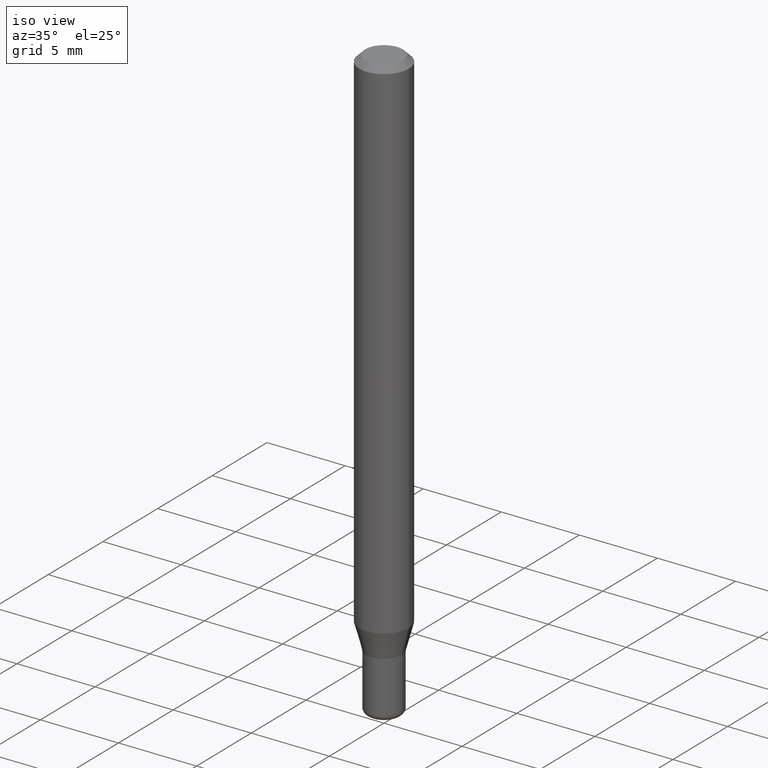
[diagram: clean part render]
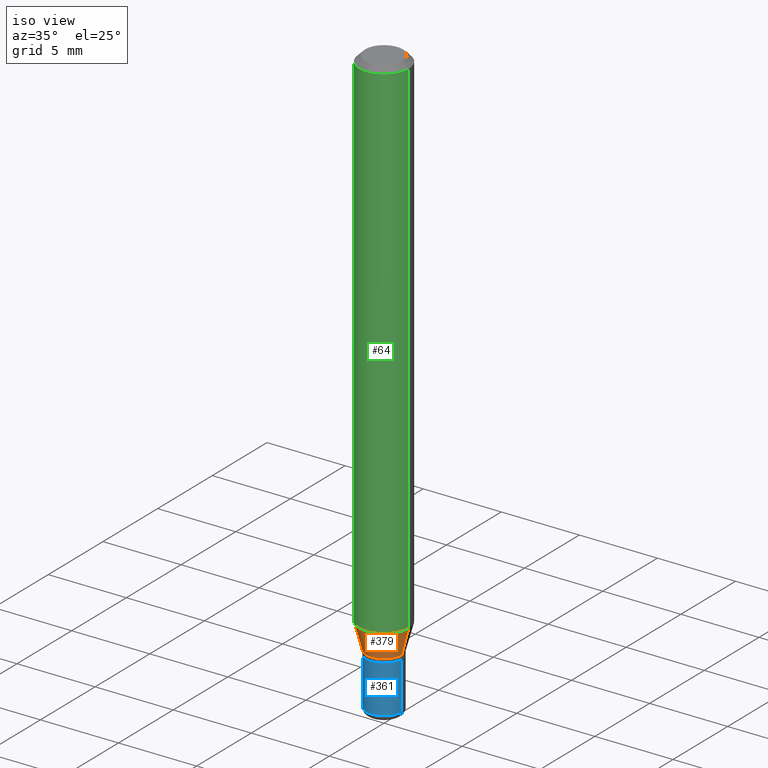
[diagram: same view with three faces highlighted in distinct colors, each labeled with its STEP entity id]
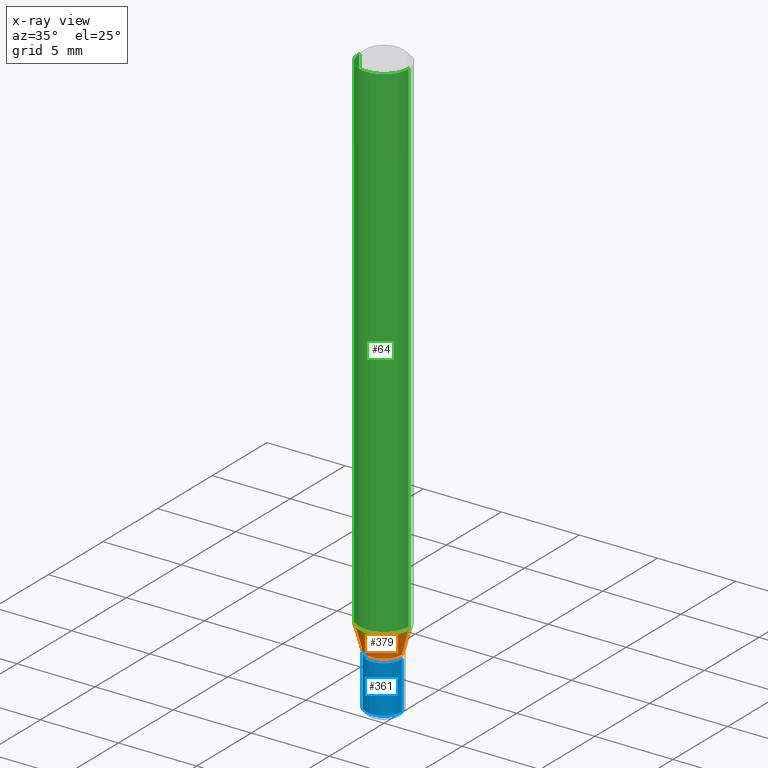
[diagram: x-ray of the same camera — body ghosted, the three highlighted faces saturated]
A machine part, iso view with three faces highlighted in distinct colors.
The next image is the same camera in x-ray (body ghosted, the three faces saturated) — at least one of them is partly hidden behind the body in this view.
Their STEP definitions:

[orange] entity #379 — the highlighted conical surface has half-angle 15 deg.
#2 = CIRCLE ( 'NONE', #397, 0.06250000000000000000 ) ;
#3 = AXIS2_PLACEMENT_3D ( 'NONE', #500, #295, #470 ) ;
#6 = CARTESIAN_POINT ( 'NONE',  ( 3.313610232380860851E-29, -4.730957214132463209E-15, -1.355000000000000204 ) ) ;
#12 = ORIENTED_EDGE ( 'NONE', *, *, #188, .F. ) ;
#26 = ORIENTED_EDGE ( 'NONE', *, *, #451, .T. ) ;
#28 = VERTEX_POINT ( 'NONE', #413 ) ;
#29 = VECTOR ( 'NONE', #478, 39.37007874015748143 ) ;
#36 = LINE ( 'NONE', #388, #399 ) ;
#39 = CARTESIAN_POINT ( 'NONE',  ( 0.06250000000000000000, -4.939360630858633822E-15, -1.289689110867545008 ) ) ;
#54 = VERTEX_POINT ( 'NONE', #39 ) ;
#94 = EDGE_CURVE ( 'NONE', #201, #54, #2, .T. ) ;
#126 = ORIENTED_EDGE ( 'NONE', *, *, #255, .T. ) ;
#187 = VERTEX_POINT ( 'NONE', #439 ) ;
#188 = EDGE_CURVE ( 'NONE', #187, #201, #353, .T. ) ;
#189 = AXIS2_PLACEMENT_3D ( 'NONE', #6, #202, #384 ) ;
#201 = VERTEX_POINT ( 'NONE', #271 ) ;
#202 = DIRECTION ( 'NONE',  ( -2.445468806185136597E-29, 3.491481338843145583E-15, 1.000000000000000000 ) ) ;
#215 = EDGE_LOOP ( 'NONE', ( #12, #126, #26, #326 ) ) ;
#255 = EDGE_CURVE ( 'NONE', #187, #28, #417, .T. ) ;
#268 = CARTESIAN_POINT ( 'NONE',  ( -0.04500000000000000527, -4.411212983040417053E-15, -1.355000000000000204 ) ) ;
#271 = CARTESIAN_POINT ( 'NONE',  ( -0.06250000000000000000, -4.058836253653178747E-15, -1.289689110867545008 ) ) ;
#295 = DIRECTION ( 'NONE',  ( -2.445468806185136597E-29, 3.491481338843145583E-15, 1.000000000000000000 ) ) ;
#304 = CONICAL_SURFACE ( 'NONE', #3, 0.04500000000000000527, 0.2617993877991497964 ) ;
#321 = FACE_OUTER_BOUND ( 'NONE', #215, .T. ) ;
#326 = ORIENTED_EDGE ( 'NONE', *, *, #94, .F. ) ;
#347 = DIRECTION ( 'NONE',  ( 0.2588190451025211281, 1.565188264969623940E-15, 0.9659258262890682012 ) ) ;
#353 = LINE ( 'NONE', #268, #29 ) ;
#379 = ADVANCED_FACE ( 'NONE', ( #321 ), #304, .T. ) ;
#382 = CARTESIAN_POINT ( 'NONE',  ( 3.153894490303225812E-29, -4.502925463503242152E-15, -1.289689110867545008 ) ) ;
#384 = DIRECTION ( 'NONE',  ( 1.000000000000000000, -6.982962677686267499E-15, 0.000000000000000000 ) ) ;
#388 = CARTESIAN_POINT ( 'NONE',  ( 0.04500000000000000527, -5.045190534628344896E-15, -1.355000000000000204 ) ) ;
#397 = AXIS2_PLACEMENT_3D ( 'NONE', #382, #453, #492 ) ;
#399 = VECTOR ( 'NONE', #347, 39.37007874015748143 ) ;
#413 = CARTESIAN_POINT ( 'NONE',  ( 0.04500000000000000527, -5.045190534628344896E-15, -1.355000000000000204 ) ) ;
#417 = CIRCLE ( 'NONE', #189, 0.04500000000000000527 ) ;
#439 = CARTESIAN_POINT ( 'NONE',  ( -0.04500000000000000527, -4.235024618346798294E-15, -1.355000000000000204 ) ) ;
#451 = EDGE_CURVE ( 'NONE', #28, #54, #36, .T. ) ;
#453 = DIRECTION ( 'NONE',  ( -2.445468806185136597E-29, 3.491481338843145583E-15, 1.000000000000000000 ) ) ;
#470 = DIRECTION ( 'NONE',  ( 1.000000000000000000, -6.982962677686267499E-15, 0.000000000000000000 ) ) ;
#478 = DIRECTION ( 'NONE',  ( -0.2588190451025211281, 5.211531920934548675E-15, 0.9659258262890682012 ) ) ;
#492 = DIRECTION ( 'NONE',  ( 1.000000000000000000, -6.982962677686262766E-15, 0.000000000000000000 ) ) ;
#500 = CARTESIAN_POINT ( 'NONE',  ( 3.313610232380860851E-29, -4.730957214132463209E-15, -1.355000000000000204 ) ) ;

[blue] entity #361 — the highlighted cylindrical surface (edge-blend (fillet) strip) has radius 1.143 mm, axis along (-0, 0, 1).
#1 = DIRECTION ( 'NONE',  ( 1.000000000000000000, -6.982962677686270655E-15, 0.000000000000000000 ) ) ;
#7 = ORIENTED_EDGE ( 'NONE', *, *, #257, .T. ) ;
#19 = CARTESIAN_POINT ( 'NONE',  ( 0.000000000000000000, 0.000000000000000000, 0.000000000000000000 ) ) ;
#30 = DIRECTION ( 'NONE',  ( 1.000000000000000000, -6.982962677686266711E-15, 4.876176775795935793E-29 ) ) ;
#46 = DIRECTION ( 'NONE',  ( -2.445468806185136597E-29, 3.491481338843145583E-15, 1.000000000000000000 ) ) ;
#62 = CIRCLE ( 'NONE', #481, 0.04499999999999998446 ) ;
#72 = CIRCLE ( 'NONE', #235, 0.04499999999999999833 ) ;
#83 = CARTESIAN_POINT ( 'NONE',  ( 3.631521177184928138E-29, -5.184849788182071492E-15, -1.485000000000000098 ) ) ;
#88 = DIRECTION ( 'NONE',  ( -2.445468806185136877E-29, 3.491481338843145188E-15, 1.000000000000000000 ) ) ;
#103 = CYLINDRICAL_SURFACE ( 'NONE', #298, 0.04499999999999999140 ) ;
#161 = VERTEX_POINT ( 'NONE', #517 ) ;
#170 = VECTOR ( 'NONE', #376, 39.37007874015748143 ) ;
#173 = DIRECTION ( 'NONE',  ( -2.445468806185136597E-29, 3.491481338843145583E-15, 1.000000000000000000 ) ) ;
#182 = CARTESIAN_POINT ( 'NONE',  ( 0.04499999999999998446, -5.499083108677953967E-15, -1.485000000000000098 ) ) ;
#213 = EDGE_CURVE ( 'NONE', #454, #312, #62, .T. ) ;
#231 = CARTESIAN_POINT ( 'NONE',  ( 0.04499999999999999140, -3.142333204958819329E-16, 2.194279549108170616E-30 ) ) ;
#235 = AXIS2_PLACEMENT_3D ( 'NONE', #267, #46, #440 ) ;
#249 = ORIENTED_EDGE ( 'NONE', *, *, #351, .F. ) ;
#257 = EDGE_CURVE ( 'NONE', #312, #318, #390, .T. ) ;
#267 = CARTESIAN_POINT ( 'NONE',  ( 3.338064920442711836E-29, -4.765872027520893280E-15, -1.364999999999999991 ) ) ;
#270 = CARTESIAN_POINT ( 'NONE',  ( -0.04499999999999998446, -4.655616676759437807E-15, -1.485000000000000098 ) ) ;
#280 = EDGE_LOOP ( 'NONE', ( #249, #420, #7, #371 ) ) ;
#298 = AXIS2_PLACEMENT_3D ( 'NONE', #19, #173, #30 ) ;
#312 = VERTEX_POINT ( 'NONE', #182 ) ;
#318 = VERTEX_POINT ( 'NONE', #370 ) ;
#332 = LINE ( 'NONE', #372, #170 ) ;
#351 = EDGE_CURVE ( 'NONE', #454, #161, #332, .T. ) ;
#361 = ADVANCED_FACE ( 'NONE', ( #508 ), #103, .T. ) ;
#370 = CARTESIAN_POINT ( 'NONE',  ( 0.04499999999999999833, -5.080105348016775756E-15, -1.364999999999999991 ) ) ;
#371 = ORIENTED_EDGE ( 'NONE', *, *, #450, .F. ) ;
#372 = CARTESIAN_POINT ( 'NONE',  ( -0.04499999999999999140, 3.197442310920450225E-16, -2.213520790614707209E-30 ) ) ;
#376 = DIRECTION ( 'NONE',  ( -2.445468806185136877E-29, 3.491481338843145188E-15, 1.000000000000000000 ) ) ;
#385 = VECTOR ( 'NONE', #88, 39.37007874015748143 ) ;
#390 = LINE ( 'NONE', #231, #385 ) ;
#420 = ORIENTED_EDGE ( 'NONE', *, *, #213, .T. ) ;
#440 = DIRECTION ( 'NONE',  ( 1.000000000000000000, -6.982962677686269077E-15, 0.000000000000000000 ) ) ;
#450 = EDGE_CURVE ( 'NONE', #161, #318, #72, .T. ) ;
#454 = VERTEX_POINT ( 'NONE', #270 ) ;
#480 = DIRECTION ( 'NONE',  ( -2.445468806185136597E-29, 3.491481338843145583E-15, 1.000000000000000000 ) ) ;
#481 = AXIS2_PLACEMENT_3D ( 'NONE', #83, #480, #1 ) ;
#508 = FACE_OUTER_BOUND ( 'NONE', #280, .T. ) ;
#517 = CARTESIAN_POINT ( 'NONE',  ( -0.04499999999999999833, -4.655616676759437807E-15, -1.364999999999999991 ) ) ;

[green] entity #64 — the highlighted cylindrical surface (edge-blend (fillet) strip) has radius 1.5875 mm, axis along (-0, 0, 1).
#2 = CIRCLE ( 'NONE', #397, 0.06250000000000000000 ) ;
#8 = EDGE_CURVE ( 'NONE', #54, #101, #311, .T. ) ;
#37 = VECTOR ( 'NONE', #498, 39.37007874015748143 ) ;
#39 = CARTESIAN_POINT ( 'NONE',  ( 0.06250000000000000000, -4.939360630858633822E-15, -1.289689110867545008 ) ) ;
#42 = EDGE_CURVE ( 'NONE', #201, #402, #172, .T. ) ;
#54 = VERTEX_POINT ( 'NONE', #39 ) ;
#64 = ADVANCED_FACE ( 'NONE', ( #507 ), #148, .T. ) ;
#71 = VECTOR ( 'NONE', #486, 39.37007874015748143 ) ;
#85 = CARTESIAN_POINT ( 'NONE',  ( 3.668203209277632395E-31, -5.237222008264614861E-17, -0.01499999999999970281 ) ) ;
#93 = ORIENTED_EDGE ( 'NONE', *, *, #42, .F. ) ;
#94 = EDGE_CURVE ( 'NONE', #201, #54, #2, .T. ) ;
#101 = VERTEX_POINT ( 'NONE', #333 ) ;
#143 = CARTESIAN_POINT ( 'NONE',  ( -0.06250000000000000000, -1.833559631942881408E-15, -0.01499999999999970281 ) ) ;
#148 = CYLINDRICAL_SURFACE ( 'NONE', #410, 0.06250000000000000000 ) ;
#172 = LINE ( 'NONE', #320, #37 ) ;
#184 = DIRECTION ( 'NONE',  ( 1.000000000000000000, -6.982962677686266711E-15, 4.876176775795935793E-29 ) ) ;
#201 = VERTEX_POINT ( 'NONE', #271 ) ;
#233 = DIRECTION ( 'NONE',  ( -2.445468806185136597E-29, 3.491481338843145583E-15, 1.000000000000000000 ) ) ;
#240 = EDGE_CURVE ( 'NONE', #402, #101, #504, .T. ) ;
#271 = CARTESIAN_POINT ( 'NONE',  ( -0.06250000000000000000, -4.058836253653178747E-15, -1.289689110867545008 ) ) ;
#279 = ORIENTED_EDGE ( 'NONE', *, *, #8, .T. ) ;
#281 = ORIENTED_EDGE ( 'NONE', *, *, #94, .T. ) ;
#311 = LINE ( 'NONE', #452, #71 ) ;
#320 = CARTESIAN_POINT ( 'NONE',  ( -0.06250000000000000000, 4.440892098500626162E-16, -3.074334431409316114E-30 ) ) ;
#333 = CARTESIAN_POINT ( 'NONE',  ( 0.06250000000000000000, -4.888073874380378612E-16, -0.01499999999999970281 ) ) ;
#336 = AXIS2_PLACEMENT_3D ( 'NONE', #85, #233, #441 ) ;
#360 = EDGE_LOOP ( 'NONE', ( #93, #281, #279, #502 ) ) ;
#380 = DIRECTION ( 'NONE',  ( -2.445468806185136597E-29, 3.491481338843145583E-15, 1.000000000000000000 ) ) ;
#382 = CARTESIAN_POINT ( 'NONE',  ( 3.153894490303225812E-29, -4.502925463503242152E-15, -1.289689110867545008 ) ) ;
#397 = AXIS2_PLACEMENT_3D ( 'NONE', #382, #453, #492 ) ;
#402 = VERTEX_POINT ( 'NONE', #143 ) ;
#410 = AXIS2_PLACEMENT_3D ( 'NONE', #469, #380, #184 ) ;
#441 = DIRECTION ( 'NONE',  ( 1.000000000000000000, -6.982962677686266711E-15, 0.000000000000000000 ) ) ;
#452 = CARTESIAN_POINT ( 'NONE',  ( 0.06250000000000000000, -4.364351673553916694E-16, 3.047610484872459871E-30 ) ) ;
#453 = DIRECTION ( 'NONE',  ( -2.445468806185136597E-29, 3.491481338843145583E-15, 1.000000000000000000 ) ) ;
#469 = CARTESIAN_POINT ( 'NONE',  ( 0.000000000000000000, 0.000000000000000000, 0.000000000000000000 ) ) ;
#486 = DIRECTION ( 'NONE',  ( -2.445468806185136877E-29, 3.491481338843145188E-15, 1.000000000000000000 ) ) ;
#492 = DIRECTION ( 'NONE',  ( 1.000000000000000000, -6.982962677686262766E-15, 0.000000000000000000 ) ) ;
#498 = DIRECTION ( 'NONE',  ( -2.445468806185136877E-29, 3.491481338843145188E-15, 1.000000000000000000 ) ) ;
#502 = ORIENTED_EDGE ( 'NONE', *, *, #240, .F. ) ;
#504 = CIRCLE ( 'NONE', #336, 0.06250000000000000000 ) ;
#507 = FACE_OUTER_BOUND ( 'NONE', #360, .T. ) ;